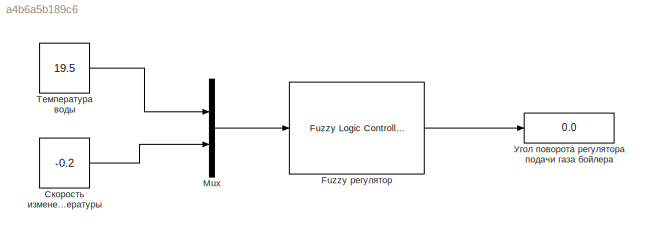
MODEL slx_a4b6a5b189c6
KIND model
CONFIG AbsTol = auto
CONFIG EnableMultiTasking = off
CONFIG FixedStep = auto
CONFIG MaxStep = auto
CONFIG MinStep = auto
CONFIG PreLoadFcn = boiler_simulink=readfis('<userpath>\OneDrive\Рабочий стол\Boiler.fis');
CONFIG RelTol = 1e-3
CONFIG SampleTimeConstraint = Unconstrained
CONFIG SolverName = VariableStepAuto
CONFIG StartTime = 0.0
CONFIG StopTime = 10.0
BLOCK [Reference] Fuzzy регулятор  REF=fuzblock/Fuzzy Logic   (lib defined in mdl_858b3b3e7478)
Controller
  SourceBlock = fuzblock/Fuzzy Logic \nController
  SourceType = Fuzzy Inference System
BLOCK [Mux] Mux
  DisplayOption = bar
  Inputs = 2
BLOCK [Constant] Скорость изменения температуры
  Value = -0.2
BLOCK [Constant] Температура воды
  Value = 19.5
BLOCK [Display] Угол поворота регулятора подачи газа бойлера
  Decimation = 1
LINE Fuzzy регулятор:1 -> Угол поворота регулятора подачи газа бойлера:1
LINE Mux:1 -> Fuzzy регулятор:1
LINE Скорость изменения температуры:1 -> Mux:2
LINE Температура воды:1 -> Mux:1
